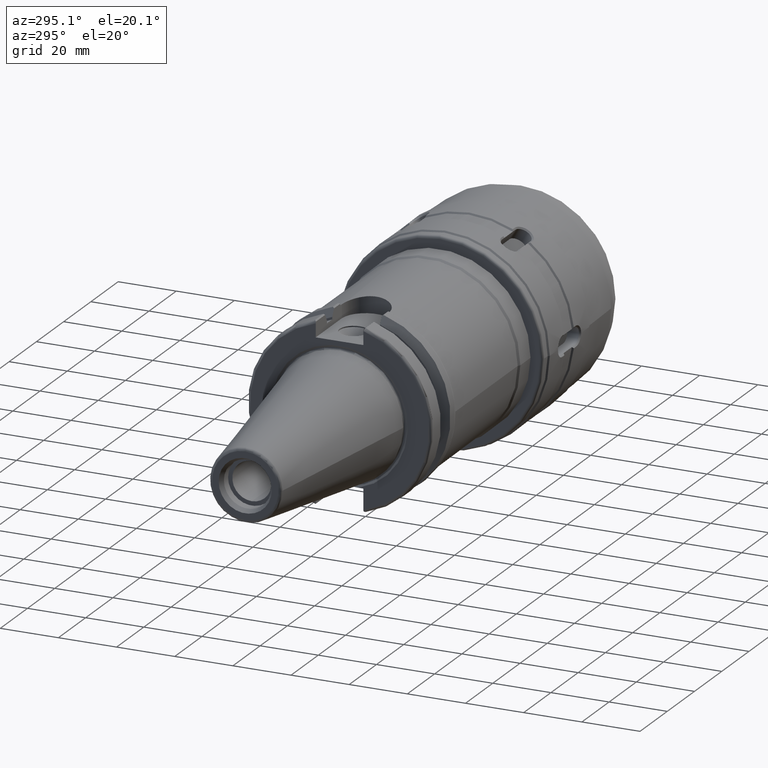
[diagram: clean part render]
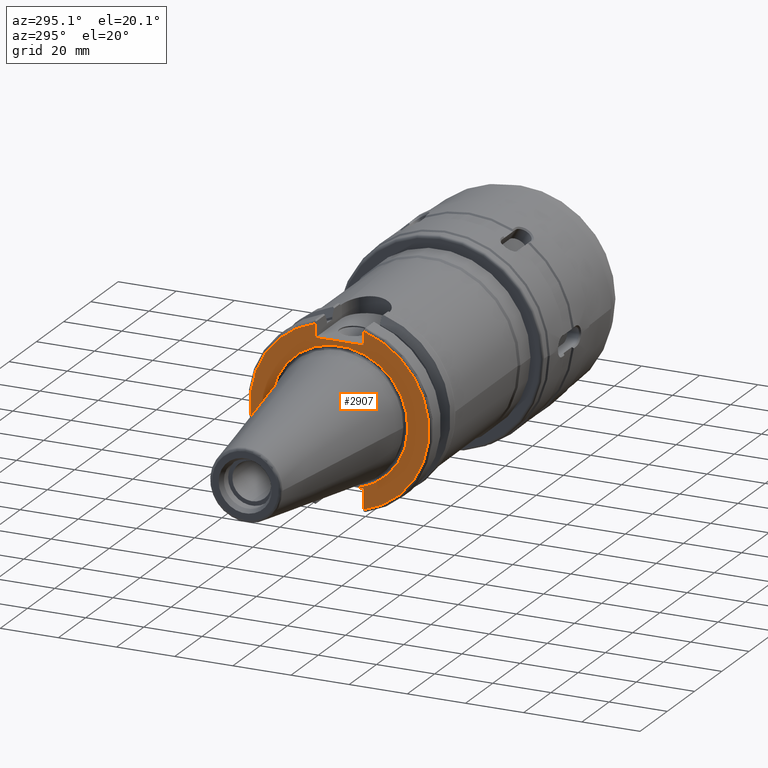
[diagram: same view with one face highlighted and labeled with its STEP entity id]
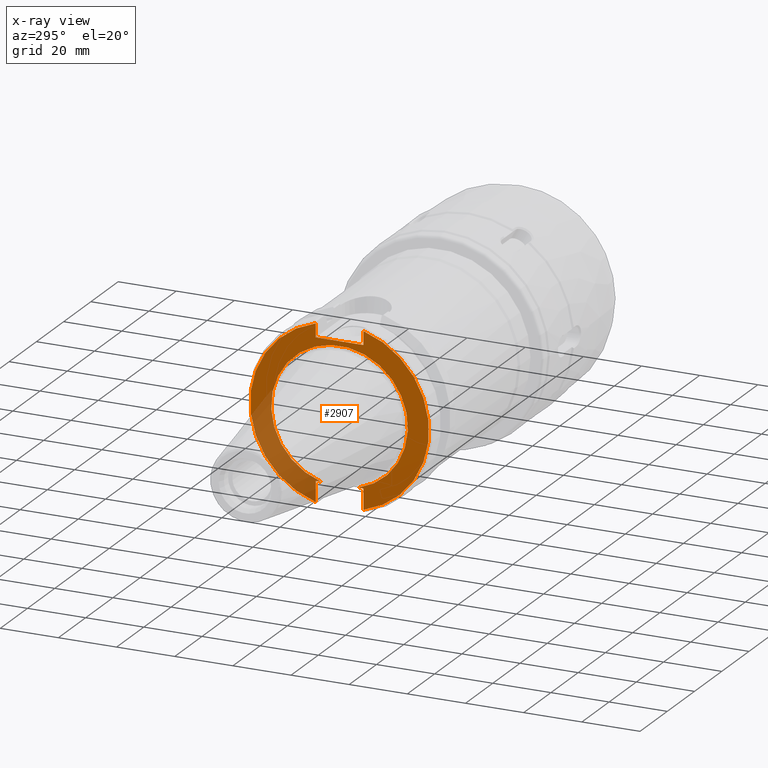
[diagram: x-ray of the same camera — body ghosted, the highlighted face saturated]
A machine part, auxiliary view. The second image highlights one B-rep face of the part: STEP entity #2907.
The next image is the same camera in x-ray: the body ghosted, the highlighted face saturated — about 25% of this face is hidden behind the body in this view.
In plain terms, the highlighted planar face has unit normal (-1, 0, 0).
Its self-contained STEP definition (entity closure, byte-faithful):
#123=PLANE('',#3188);
#249=FACE_OUTER_BOUND('',#431,.T.);
#431=EDGE_LOOP('',(#2098,#2099,#2100,#2101,#2102,#2103,#2104,#2105,#2106,
#2107));
#614=CIRCLE('',#3180,30.75);
#617=CIRCLE('',#3187,30.75);
#618=CIRCLE('',#3189,23.5);
#743=LINE('',#4433,#968);
#749=LINE('',#4494,#974);
#760=LINE('',#4546,#985);
#764=LINE('',#4614,#989);
#765=LINE('',#4616,#990);
#766=LINE('',#4619,#991);
#767=LINE('',#4620,#992);
#968=VECTOR('',#3546,10.);
#974=VECTOR('',#3558,10.);
#985=VECTOR('',#3571,10.);
#989=VECTOR('',#3597,10.);
#990=VECTOR('',#3598,10.);
#991=VECTOR('',#3601,10.);
#992=VECTOR('',#3602,10.);
#1252=VERTEX_POINT('',#4430);
#1253=VERTEX_POINT('',#4432);
#1264=VERTEX_POINT('',#4491);
#1265=VERTEX_POINT('',#4493);
#1280=VERTEX_POINT('',#4538);
#1281=VERTEX_POINT('',#4545);
#1289=VERTEX_POINT('',#4604);
#1290=VERTEX_POINT('',#4613);
#1291=VERTEX_POINT('',#4615);
#1292=VERTEX_POINT('',#4617);
#1553=EDGE_CURVE('',#1253,#1252,#743,.T.);
#1567=EDGE_CURVE('',#1265,#1264,#749,.T.);
#1584=EDGE_CURVE('',#1281,#1280,#760,.T.);
#1589=EDGE_CURVE('',#1265,#1280,#614,.T.);
#1598=EDGE_CURVE('',#1253,#1289,#617,.T.);
#1600=EDGE_CURVE('',#1290,#1289,#764,.T.);
#1601=EDGE_CURVE('',#1252,#1291,#765,.T.);
#1602=EDGE_CURVE('',#1291,#1292,#618,.T.);
#1603=EDGE_CURVE('',#1292,#1281,#766,.T.);
#1604=EDGE_CURVE('',#1264,#1290,#767,.T.);
#2098=ORIENTED_EDGE('',*,*,#1600,.T.);
#2099=ORIENTED_EDGE('',*,*,#1598,.F.);
#2100=ORIENTED_EDGE('',*,*,#1553,.T.);
#2101=ORIENTED_EDGE('',*,*,#1601,.T.);
#2102=ORIENTED_EDGE('',*,*,#1602,.T.);
#2103=ORIENTED_EDGE('',*,*,#1603,.T.);
#2104=ORIENTED_EDGE('',*,*,#1584,.T.);
#2105=ORIENTED_EDGE('',*,*,#1589,.F.);
#2106=ORIENTED_EDGE('',*,*,#1567,.T.);
#2107=ORIENTED_EDGE('',*,*,#1604,.T.);
#2907=ADVANCED_FACE('',(#249),#123,.T.);
#3180=AXIS2_PLACEMENT_3D('',#4568,#3577,#3578);
#3187=AXIS2_PLACEMENT_3D('',#4605,#3593,#3594);
#3188=AXIS2_PLACEMENT_3D('',#4612,#3595,#3596);
#3189=AXIS2_PLACEMENT_3D('',#4618,#3599,#3600);
#3546=DIRECTION('',(0.,0.,1.));
#3558=DIRECTION('',(0.,0.,-1.));
#3571=DIRECTION('',(0.,0.,-1.));
#3577=DIRECTION('center_axis',(1.,0.,0.));
#3578=DIRECTION('ref_axis',(0.,-1.,1.60812264967664E-16));
#3593=DIRECTION('center_axis',(1.,0.,0.));
#3594=DIRECTION('ref_axis',(0.,1.,1.60812264967664E-16));
#3595=DIRECTION('center_axis',(-1.,0.,0.));
#3596=DIRECTION('ref_axis',(0.,0.,1.));
#3597=DIRECTION('',(0.,0.,1.));
#3598=DIRECTION('',(0.,-1.,0.));
#3599=DIRECTION('center_axis',(1.,0.,0.));
#3600=DIRECTION('ref_axis',(0.,0.,-1.));
#3601=DIRECTION('',(0.,-1.,0.));
#3602=DIRECTION('',(0.,1.,0.));
#4430=CARTESIAN_POINT('',(1.00000000000001,8.19000000000001,-22.6));
#4432=CARTESIAN_POINT('',(1.,8.18999999999999,-29.6392712461019));
#4433=CARTESIAN_POINT('',(1.,8.19000000000001,-11.3));
#4491=CARTESIAN_POINT('',(1.00000000000001,-8.19000000000002,25.));
#4493=CARTESIAN_POINT('',(1.,-8.18999999999999,29.6392712461019));
#4494=CARTESIAN_POINT('',(1.,-8.19000000000002,12.5));
#4538=CARTESIAN_POINT('',(1.,-8.19,-29.6392712461019));
#4545=CARTESIAN_POINT('',(1.00000000000001,-8.19,-22.6));
#4546=CARTESIAN_POINT('',(1.,-8.19,-11.3));
#4568=CARTESIAN_POINT('Origin',(1.,0.,0.));
#4604=CARTESIAN_POINT('',(1.,8.19,29.6392712461019));
#4605=CARTESIAN_POINT('Origin',(1.,0.,0.));
#4612=CARTESIAN_POINT('Origin',(1.,31.75,0.));
#4613=CARTESIAN_POINT('',(0.999999999999998,8.19,25.));
#4614=CARTESIAN_POINT('',(1.,8.19,12.5));
#4615=CARTESIAN_POINT('',(0.999999999999997,6.4412731660752,-22.6));
#4616=CARTESIAN_POINT('',(1.,15.875,-22.6));
#4617=CARTESIAN_POINT('',(1.,-6.44127316607517,-22.6));
#4618=CARTESIAN_POINT('Origin',(0.999999999999996,0.,0.));
#4619=CARTESIAN_POINT('',(1.,15.875,-22.6));
#4620=CARTESIAN_POINT('',(1.,15.875,25.));